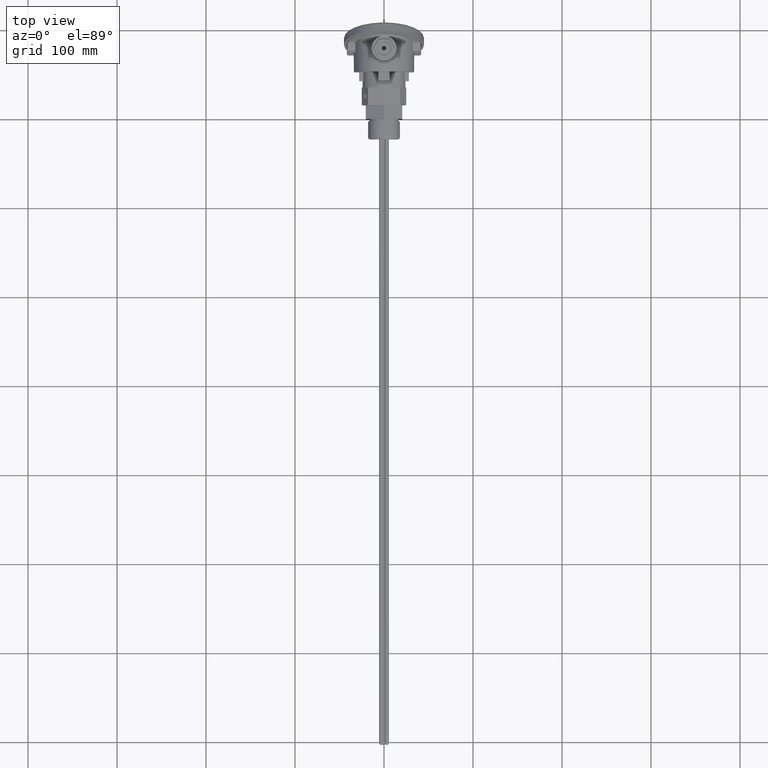
[diagram: clean part render]
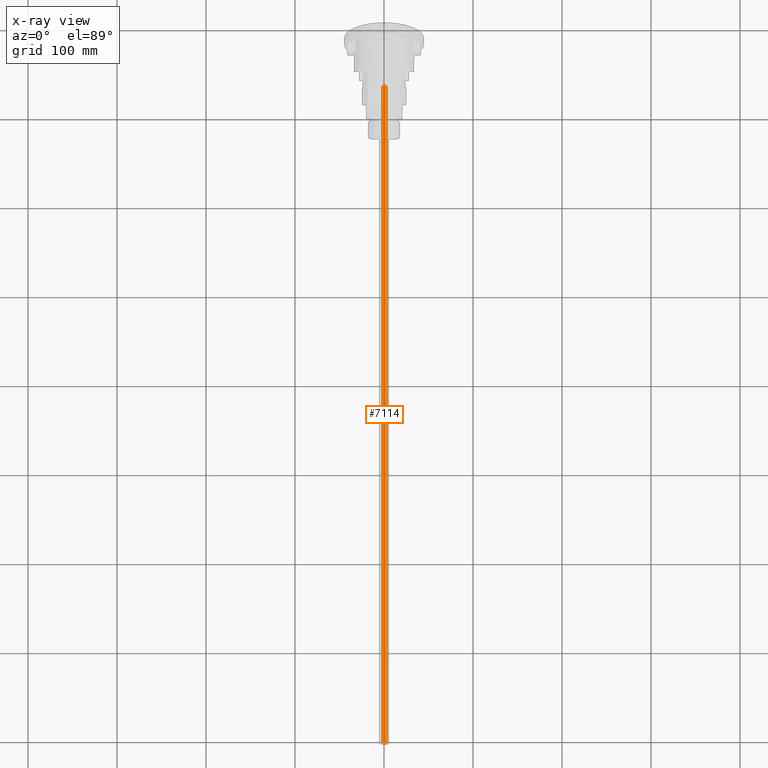
[diagram: x-ray — body ghosted, one internal face saturated and labeled with its STEP entity id]
A machine part, top view, then the same camera in x-ray: the body is ghosted and one INTERNAL B-rep face — a face not visible from any outside direction — is saturated and labeled: STEP entity #7114.
In plain terms, the highlighted cylindrical surface (edge-blend (fillet) strip) has radius 1.5 mm, axis along (0, -1, -0).
Its self-contained STEP definition (entity closure, byte-faithful):
#1159 = EDGE_CURVE ( 'NONE', #13230, #7814, #15615, .T. ) ;
#1261 = DIRECTION ( 'NONE',  ( 0.000000000000000000, 0.000000000000000000, 1.000000000000000000 ) ) ;
#1283 = CARTESIAN_POINT ( 'NONE',  ( 1.836970198721030181E-16, 737.5000000000000000, 1.500000000000000222 ) ) ;
#2071 = DIRECTION ( 'NONE',  ( 0.000000000000000000, 0.000000000000000000, 1.000000000000000000 ) ) ;
#2744 = DIRECTION ( 'NONE',  ( 0.000000000000000000, 1.000000000000000000, 0.000000000000000000 ) ) ;
#2837 = AXIS2_PLACEMENT_3D ( 'NONE', #4304, #3019, #5856 ) ;
#2936 = EDGE_CURVE ( 'NONE', #7814, #16075, #14725, .T. ) ;
#3019 = DIRECTION ( 'NONE',  ( -0.000000000000000000, -1.000000000000000000, -0.000000000000000000 ) ) ;
#4152 = ORIENTED_EDGE ( 'NONE', *, *, #14295, .T. ) ;
#4304 = CARTESIAN_POINT ( 'NONE',  ( 0.000000000000000000, 737.5000000000000000, 0.000000000000000000 ) ) ;
#4399 = FACE_OUTER_BOUND ( 'NONE', #14967, .T. ) ;
#4721 = AXIS2_PLACEMENT_3D ( 'NONE', #13955, #11008, #2071 ) ;
#5732 = CARTESIAN_POINT ( 'NONE',  ( 0.000000000000000000, 737.5000000000000000, 0.000000000000000000 ) ) ;
#5770 = ORIENTED_EDGE ( 'NONE', *, *, #1159, .F. ) ;
#5856 = DIRECTION ( 'NONE',  ( 0.000000000000000000, 0.000000000000000000, -1.000000000000000000 ) ) ;
#5884 = VECTOR ( 'NONE', #14052, 1000.000000000000000 ) ;
#6509 = CARTESIAN_POINT ( 'NONE',  ( 1.836970198721030181E-16, 737.5000000000000000, 1.500000000000000222 ) ) ;
#7114 = ADVANCED_FACE ( 'NONE', ( #4399 ), #11738, .F. ) ;
#7221 = VERTEX_POINT ( 'NONE', #10662 ) ;
#7284 = DIRECTION ( 'NONE',  ( -0.000000000000000000, -1.000000000000000000, -0.000000000000000000 ) ) ;
#7410 = ORIENTED_EDGE ( 'NONE', *, *, #2936, .F. ) ;
#7814 = VERTEX_POINT ( 'NONE', #7896 ) ;
#7885 = CARTESIAN_POINT ( 'NONE',  ( 0.000000000000000000, 737.5000000000000000, -1.500000000000000222 ) ) ;
#7896 = CARTESIAN_POINT ( 'NONE',  ( 0.000000000000000000, 0.000000000000000000, -1.500000000000000222 ) ) ;
#9194 = CARTESIAN_POINT ( 'NONE',  ( -1.500000000000000000, 0.000000000000000000, 0.000000000000000000 ) ) ;
#10273 = EDGE_CURVE ( 'NONE', #17631, #7221, #14727, .T. ) ;
#10662 = CARTESIAN_POINT ( 'NONE',  ( 1.836970198721030181E-16, 0.000000000000000000, 1.500000000000000222 ) ) ;
#11008 = DIRECTION ( 'NONE',  ( 0.000000000000000000, 1.000000000000000000, 0.000000000000000000 ) ) ;
#11738 = CYLINDRICAL_SURFACE ( 'NONE', #2837, 1.500000000000000222 ) ;
#11803 = EDGE_CURVE ( 'NONE', #16075, #7221, #13764, .T. ) ;
#13230 = VERTEX_POINT ( 'NONE', #7885 ) ;
#13376 = DIRECTION ( 'NONE',  ( 0.000000000000000000, 1.000000000000000000, 0.000000000000000000 ) ) ;
#13764 = CIRCLE ( 'NONE', #18752, 1.500000000000000222 ) ;
#13876 = ORIENTED_EDGE ( 'NONE', *, *, #11803, .F. ) ;
#13955 = CARTESIAN_POINT ( 'NONE',  ( 0.000000000000000000, 0.000000000000000000, 0.000000000000000000 ) ) ;
#14052 = DIRECTION ( 'NONE',  ( -0.000000000000000000, -1.000000000000000000, -0.000000000000000000 ) ) ;
#14144 = CARTESIAN_POINT ( 'NONE',  ( 0.000000000000000000, 737.5000000000000000, -1.500000000000000222 ) ) ;
#14295 = EDGE_CURVE ( 'NONE', #13230, #17631, #14512, .T. ) ;
#14512 = CIRCLE ( 'NONE', #17038, 1.500000000000000222 ) ;
#14725 = CIRCLE ( 'NONE', #4721, 1.500000000000000222 ) ;
#14727 = LINE ( 'NONE', #1283, #14950 ) ;
#14844 = DIRECTION ( 'NONE',  ( 0.000000000000000000, 0.000000000000000000, 1.000000000000000000 ) ) ;
#14950 = VECTOR ( 'NONE', #7284, 1000.000000000000000 ) ;
#14967 = EDGE_LOOP ( 'NONE', ( #4152, #17532, #13876, #7410, #5770 ) ) ;
#15615 = LINE ( 'NONE', #14144, #5884 ) ;
#16075 = VERTEX_POINT ( 'NONE', #9194 ) ;
#16179 = CARTESIAN_POINT ( 'NONE',  ( 0.000000000000000000, 0.000000000000000000, 0.000000000000000000 ) ) ;
#17038 = AXIS2_PLACEMENT_3D ( 'NONE', #5732, #13376, #14844 ) ;
#17532 = ORIENTED_EDGE ( 'NONE', *, *, #10273, .T. ) ;
#17631 = VERTEX_POINT ( 'NONE', #6509 ) ;
#18752 = AXIS2_PLACEMENT_3D ( 'NONE', #16179, #2744, #1261 ) ;